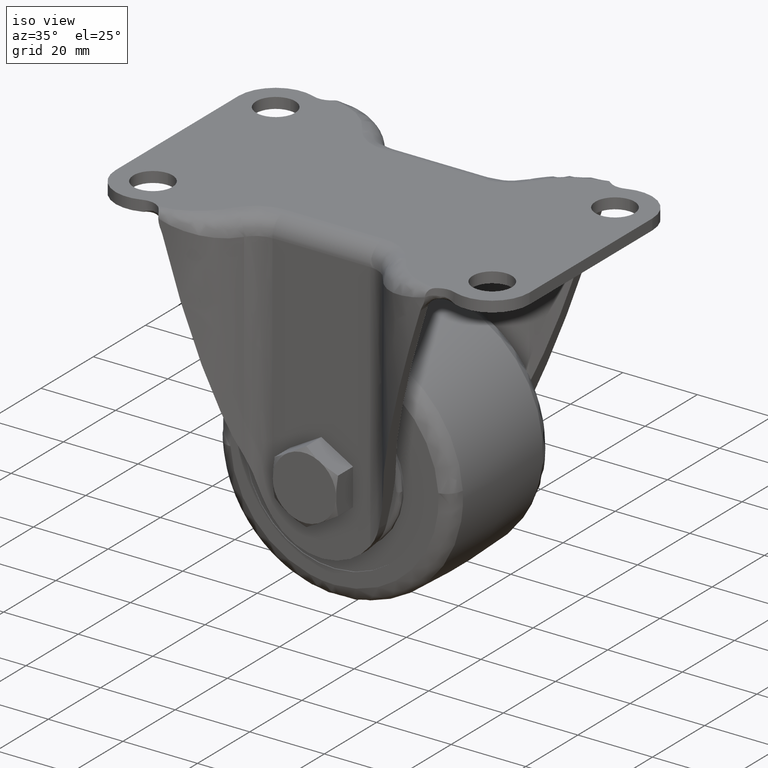
[diagram: clean part render]
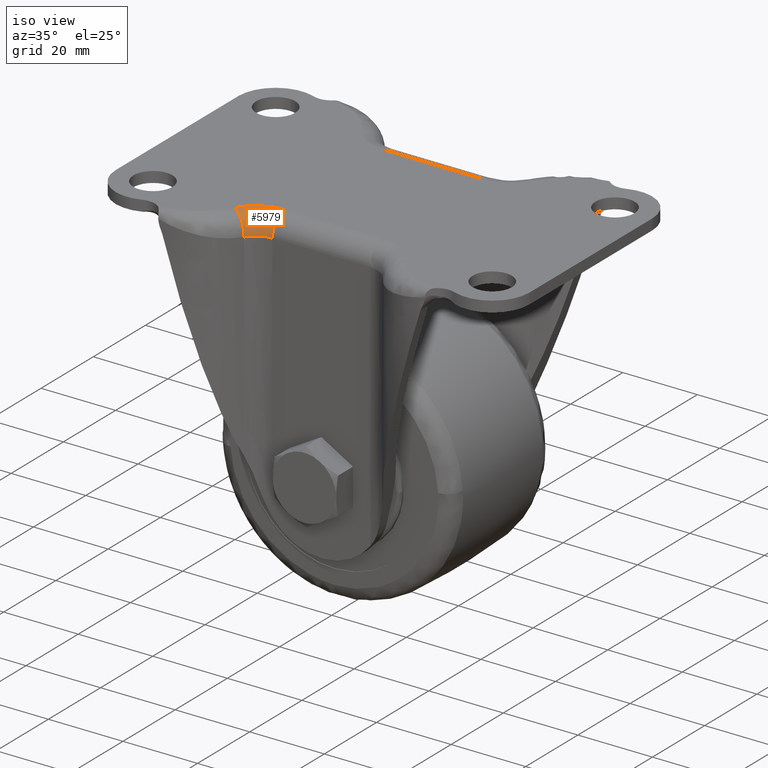
[diagram: same view with one face highlighted and labeled with its STEP entity id]
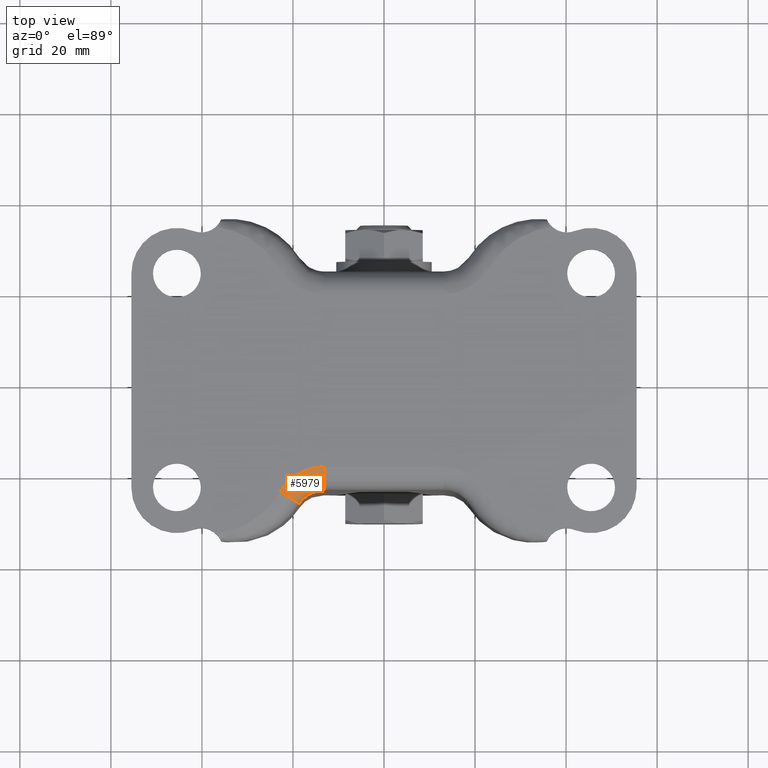
[diagram: same view with one face highlighted and labeled with its STEP entity id]
A machine part, iso view. The second image highlights one B-rep face of the part: STEP entity #5979.
A second angle (top view) of the same face is appended — the face is thin or edge-on in the first view.
In plain terms, the highlighted face is a freeform B-spline surface patch.
Its self-contained STEP definition (entity closure, byte-faithful):
#3959=CARTESIAN_POINT('',(-18.621833761987101,-27.051020408163250,-5.0));
#3960=VERTEX_POINT('',#3959);
#4599=CARTESIAN_POINT('',(-13.112339000000080,-24.0,-5.0));
#4600=VERTEX_POINT('',#4599);
#4636=CARTESIAN_POINT('',(-13.112339000000080,-24.000000000000028,-5.0));
#4637=CARTESIAN_POINT('',(-16.711875577831584,-24.000000363993685,-4.999999999999999));
#4638=CARTESIAN_POINT('',(-18.621833761987091,-27.051020408163261,-5.0));
#4646=(BOUNDED_CURVE()B_SPLINE_CURVE(2,(#4636,#4637,#4638),.UNSPECIFIED.,.F.,.U.)CURVE()GEOMETRIC_REPRESENTATION_ITEM()QUASI_UNIFORM_CURVE()RATIONAL_B_SPLINE_CURVE((1.0,0.874817789774179,1.0))REPRESENTATION_ITEM(''));
#4647=EDGE_CURVE('',#4600,#3960,#4646,.T.);
#5905=CARTESIAN_POINT('',(-13.112339505611899,-19.0,0.0));
#5906=VERTEX_POINT('',#5905);
#5907=CARTESIAN_POINT('',(-13.112339505611899,-19.0,0.0));
#5908=CARTESIAN_POINT('',(-13.112339000000066,-23.999999999999972,0.0));
#5909=CARTESIAN_POINT('',(-13.112339000000070,-23.999999999999972,-5.0));
#5917=(BOUNDED_CURVE()B_SPLINE_CURVE(2,(#5907,#5908,#5909),.UNSPECIFIED.,.F.,.U.)CURVE()GEOMETRIC_REPRESENTATION_ITEM()QUASI_UNIFORM_CURVE()RATIONAL_B_SPLINE_CURVE((1.0,0.707106781186548,1.0))REPRESENTATION_ITEM(''));
#5918=EDGE_CURVE('',#5906,#4600,#5917,.T.);
#5930=CARTESIAN_POINT('',(-18.791939292119057,-27.314153017941592,-5.347685774563380));
#5931=CARTESIAN_POINT('',(-16.821880407609800,-23.802010603734523,-5.347685774563380));
#5932=CARTESIAN_POINT('',(-12.799583493798702,-23.995411439440240,-5.347685774563378));
#5933=CARTESIAN_POINT('',(-18.443258861911676,-27.509737620834070,0.387685831130385));
#5934=CARTESIAN_POINT('',(-16.594145266605427,-24.213211644972315,0.387685831130385));
#5935=CARTESIAN_POINT('',(-12.818784049654168,-24.394739272120425,0.387685831130386));
#5936=CARTESIAN_POINT('',(-23.445425003448086,-24.703882764532626,-0.012103178889639));
#5937=CARTESIAN_POINT('',(-19.861231437436981,-18.314125411136860,-0.012103178889639));
#5938=CARTESIAN_POINT('',(-12.543333057633287,-18.665985975533253,-0.012103178889639));
#5946=(BOUNDED_SURFACE()B_SPLINE_SURFACE(2,2,((#5930,#5933,#5936),(#5931,#5934,#5937),(#5932,#5935,#5938)),.UNSPECIFIED.,.F.,.F.,.U.)B_SPLINE_SURFACE_WITH_KNOTS((3,3),(3,3),(0.0,13.469094587449691),(0.0,9.111869945574064),.UNSPECIFIED.)GEOMETRIC_REPRESENTATION_ITEM()RATIONAL_B_SPLINE_SURFACE(((0.851857987790783,0.559010460647201,0.851857977062677),(0.725173006147072,0.475876615615832,0.725172997014408),(0.853389339135747,0.560015371598358,0.853389328388356)))REPRESENTATION_ITEM('')SURFACE());
#5947=CARTESIAN_POINT('',(-22.859907161435100,-24.397959183673500,0.0));
#5948=VERTEX_POINT('',#5947);
#5949=CARTESIAN_POINT('',(-22.859907161435100,-24.397959183673500,0.0));
#5950=CARTESIAN_POINT('',(-18.621833761986807,-27.051020408162852,-1.734723E-015));
#5951=CARTESIAN_POINT('',(-18.621833761986821,-27.051020408162799,-5.0));
#5959=(BOUNDED_CURVE()B_SPLINE_CURVE(2,(#5949,#5950,#5951),.UNSPECIFIED.,.F.,.U.)CURVE()GEOMETRIC_REPRESENTATION_ITEM()QUASI_UNIFORM_CURVE()RATIONAL_B_SPLINE_CURVE((1.0,0.707106781186547,1.0))REPRESENTATION_ITEM(''));
#5960=EDGE_CURVE('',#5948,#3960,#5959,.T.);
#5961=ORIENTED_EDGE('',*,*,#5960,.T.);
#5962=ORIENTED_EDGE('',*,*,#4647,.F.);
#5963=ORIENTED_EDGE('',*,*,#5918,.F.);
#5964=CARTESIAN_POINT('',(-22.859907161435110,-24.397959183673500,0.0));
#5965=CARTESIAN_POINT('',(-19.480750374083065,-19.000000643988830,0.0));
#5966=CARTESIAN_POINT('',(-13.112339505611899,-19.000000000000060,0.0));
#5974=(BOUNDED_CURVE()B_SPLINE_CURVE(2,(#5964,#5965,#5966),.UNSPECIFIED.,.F.,.U.)CURVE()GEOMETRIC_REPRESENTATION_ITEM()QUASI_UNIFORM_CURVE()RATIONAL_B_SPLINE_CURVE((1.0,0.874817789774178,1.0))REPRESENTATION_ITEM(''));
#5975=EDGE_CURVE('',#5948,#5906,#5974,.T.);
#5976=ORIENTED_EDGE('',*,*,#5975,.F.);
#5977=EDGE_LOOP('',(#5961,#5962,#5963,#5976));
#5978=FACE_OUTER_BOUND('',#5977,.T.);
#5979=ADVANCED_FACE('',(#5978),#5946,.T.);